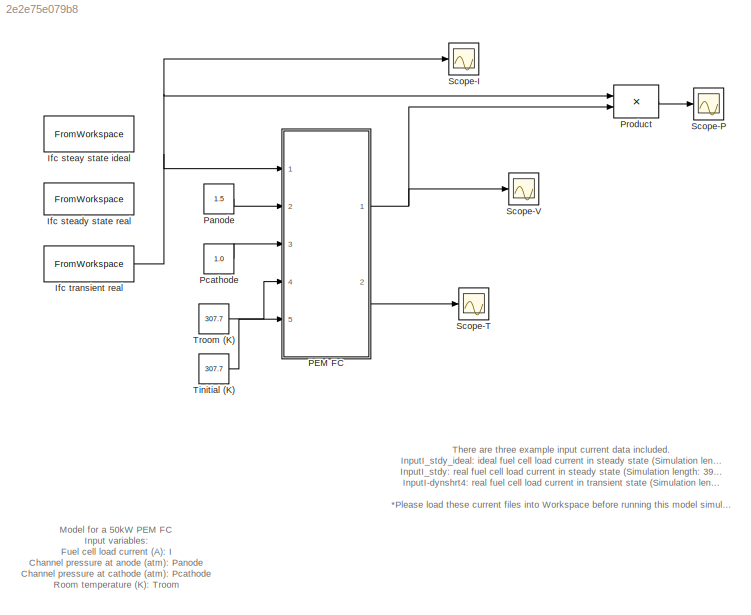
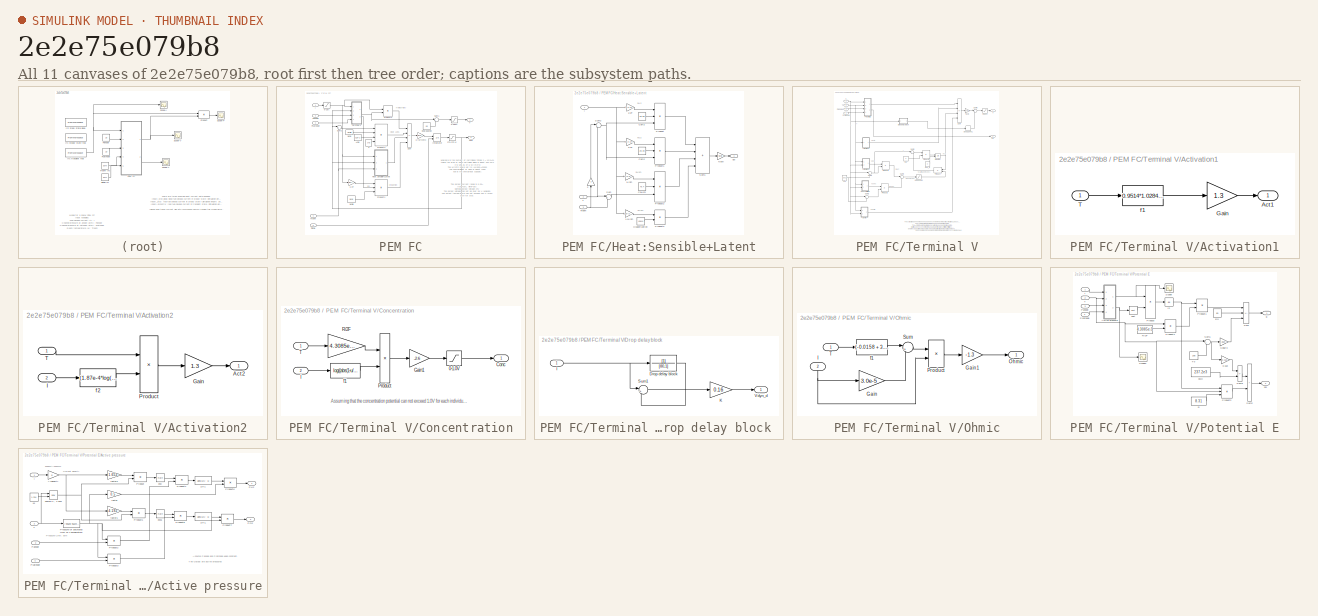
[diagram: thumbnail index - all 11 canvases of the model, root first then tree order]
MODEL slx_2e2e75e079b8
KIND model
CONFIG AbsTol = auto
CONFIG EnableMultiTasking = on
CONFIG FixedStep = 0.001
CONFIG MaxStep = auto
CONFIG MinStep = auto
CONFIG RelTol = 1e-6
CONFIG SampleTimeConstraint = Unconstrained
CONFIG SolverName = ode23tb
CONFIG StartTime = 0.0
CONFIG StopTime = 4900
BLOCK [FromWorkspace] Ifc steady state real
  VariableName = InputI_stdy
  ZeroCross = off
BLOCK [FromWorkspace] Ifc steay state ideal
  VariableName = InputI_stdy_ideal
  ZeroCross = off
BLOCK [FromWorkspace] Ifc transient real
  VariableName = InputI_dynshrt4
  ZeroCross = off
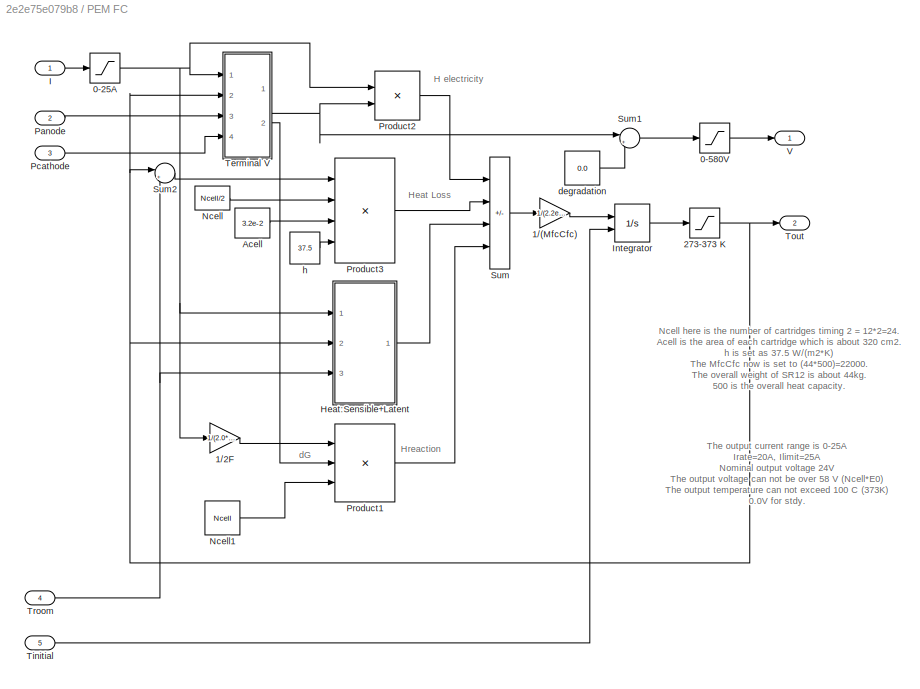
BLOCK [SubSystem] PEM FC
  Ports = [5, 2]
  RequestExecContextInheritance = off
BLOCK [Saturate] PEM FC/0-25A
  LowerLimit = 0
  UpperLimit = 25
BLOCK [Saturate] PEM FC/0-580V
  LowerLimit = 0
  UpperLimit = 1500
BLOCK [Gain] PEM FC/1//(MfcCfc)
  Gain = 1/(2.2e4)
  OutDataTypeStr = Inherit: Same as input
  ParamDataTypeStr = Inherit: Same as input
  SaturateOnIntegerOverflow = on
BLOCK [Gain] PEM FC/1//2F
  Gain = 1/(2.0*96487.0)
  OutDataTypeStr = Inherit: Same as input
  ParamDataTypeStr = Inherit: Same as input
  SaturateOnIntegerOverflow = on
BLOCK [Saturate] PEM FC/273-373 K
  LowerLimit = 273.15
  UpperLimit = 373.15
BLOCK [Constant] PEM FC/Acell
  Value = 3.2e-2
BLOCK [SubSystem] PEM FC/Heat:Sensible+Latent
  Ports = [3, 1]
  RequestExecContextInheritance = off
BLOCK [Gain] PEM FC/Heat:Sensible+Latent/1.0//(2F)
  Gain = 1.0/(2.0*96487.0)
  OutDataTypeStr = Inherit: Same as input
  ParamDataTypeStr = Inherit: Same as input
  SaturateOnIntegerOverflow = on
BLOCK [Gain] PEM FC/Heat:Sensible+Latent/1//(2F)
  Gain = 1/(2.0*96487.0)
  OutDataTypeStr = Inherit: Same as input
  ParamDataTypeStr = Inherit: Same as input
  SaturateOnIntegerOverflow = on
BLOCK [Gain] PEM FC/Heat:Sensible+Latent/1//2F
  Gain = 1/(2.0*96487.0)
  OutDataTypeStr = Inherit: Same as input
  ParamDataTypeStr = Inherit: Same as input
  SaturateOnIntegerOverflow = on
BLOCK [Gain] PEM FC/Heat:Sensible+Latent/1//4F
  Gain = 1/(4.0*96487.0)
  OutDataTypeStr = Inherit: Same as input
  ParamDataTypeStr = Inherit: Same as input
  SaturateOnIntegerOverflow = on
BLOCK [Gain] PEM FC/Heat:Sensible+Latent/2
  Gain = 2
  NameLocation = right
  OutDataTypeStr = Inherit: Same as input
  ParamDataTypeStr = Inherit: Same as input
  SaturateOnIntegerOverflow = on
BLOCK [Constant] PEM FC/Heat:Sensible+Latent/CpH2
  Value = 28.68
BLOCK [Constant] PEM FC/Heat:Sensible+Latent/CpH2O
  Value = 75.4
BLOCK [Constant] PEM FC/Heat:Sensible+Latent/CpO2
  Value = 29.39
BLOCK [Constant] PEM FC/Heat:Sensible+Latent/Hvaporization
  Value = 40644
BLOCK [Inport] PEM FC/Heat:Sensible+Latent/I
BLOCK [Gain] PEM FC/Heat:Sensible+Latent/Ncell
  Gain = Ncell
  OutDataTypeStr = Inherit: Same as input
  ParamDataTypeStr = Inherit: Same as input
  SaturateOnIntegerOverflow = on
BLOCK [Product] PEM FC/Heat:Sensible+Latent/Product
  Inputs = 3
  OutDataTypeStr = Inherit: Same as first input
  Ports = [3, 1]
  SaturateOnIntegerOverflow = on
BLOCK [Product] PEM FC/Heat:Sensible+Latent/Product1
  Inputs = 3
  OutDataTypeStr = Inherit: Same as first input
  Ports = [3, 1]
  SaturateOnIntegerOverflow = on
BLOCK [Product] PEM FC/Heat:Sensible+Latent/Product2
  Inputs = 3
  OutDataTypeStr = Inherit: Same as first input
  Ports = [3, 1]
  SaturateOnIntegerOverflow = on
BLOCK [Product] PEM FC/Heat:Sensible+Latent/Product3
  OutDataTypeStr = Inherit: Same as first input
  Ports = [2, 1]
  SaturateOnIntegerOverflow = on
BLOCK [Sum] PEM FC/Heat:Sensible+Latent/Sum
  Inputs = |+-
  Ports = [2, 1]
  SaturateOnIntegerOverflow = on
BLOCK [Sum] PEM FC/Heat:Sensible+Latent/Sum1
  IconShape = rectangular
  Inputs = ++++
  Ports = [4, 1]
  SaturateOnIntegerOverflow = on
BLOCK [Sum] PEM FC/Heat:Sensible+Latent/Sum2
  Inputs = |+-
  Ports = [2, 1]
  SaturateOnIntegerOverflow = on
BLOCK [Inport] PEM FC/Heat:Sensible+Latent/T
  Port = 2
BLOCK [Inport] PEM FC/Heat:Sensible+Latent/Troom
  Port = 3
BLOCK [Outport] PEM FC/Heat:Sensible+Latent/qsl
BLOCK [Inport] PEM FC/I
BLOCK [Integrator] PEM FC/Integrator
  InitialConditionSource = external
  Ports = [2, 1]
BLOCK [Constant] PEM FC/Ncell
  Value = Ncell/2
BLOCK [Constant] PEM FC/Ncell1
  Value = Ncell
BLOCK [Inport] PEM FC/Panode
  Port = 2
BLOCK [Inport] PEM FC/Pcathode
  Port = 3
BLOCK [Product] PEM FC/Product1
  Inputs = 3
  OutDataTypeStr = Inherit: Same as first input
  Ports = [3, 1]
  SaturateOnIntegerOverflow = on
BLOCK [Product] PEM FC/Product2
  OutDataTypeStr = Inherit: Same as first input
  Ports = [2, 1]
  SaturateOnIntegerOverflow = on
BLOCK [Product] PEM FC/Product3
  Inputs = 4
  OutDataTypeStr = Inherit: Same as first input
  Ports = [4, 1]
  SaturateOnIntegerOverflow = on
BLOCK [Sum] PEM FC/Sum
  IconShape = rectangular
  Inputs = ---+
  Ports = [4, 1]
  SaturateOnIntegerOverflow = on
BLOCK [Sum] PEM FC/Sum1
  Inputs = |+-
  Ports = [2, 1]
  SaturateOnIntegerOverflow = on
BLOCK [Sum] PEM FC/Sum2
  Inputs = |+-
  Ports = [2, 1]
  SaturateOnIntegerOverflow = on
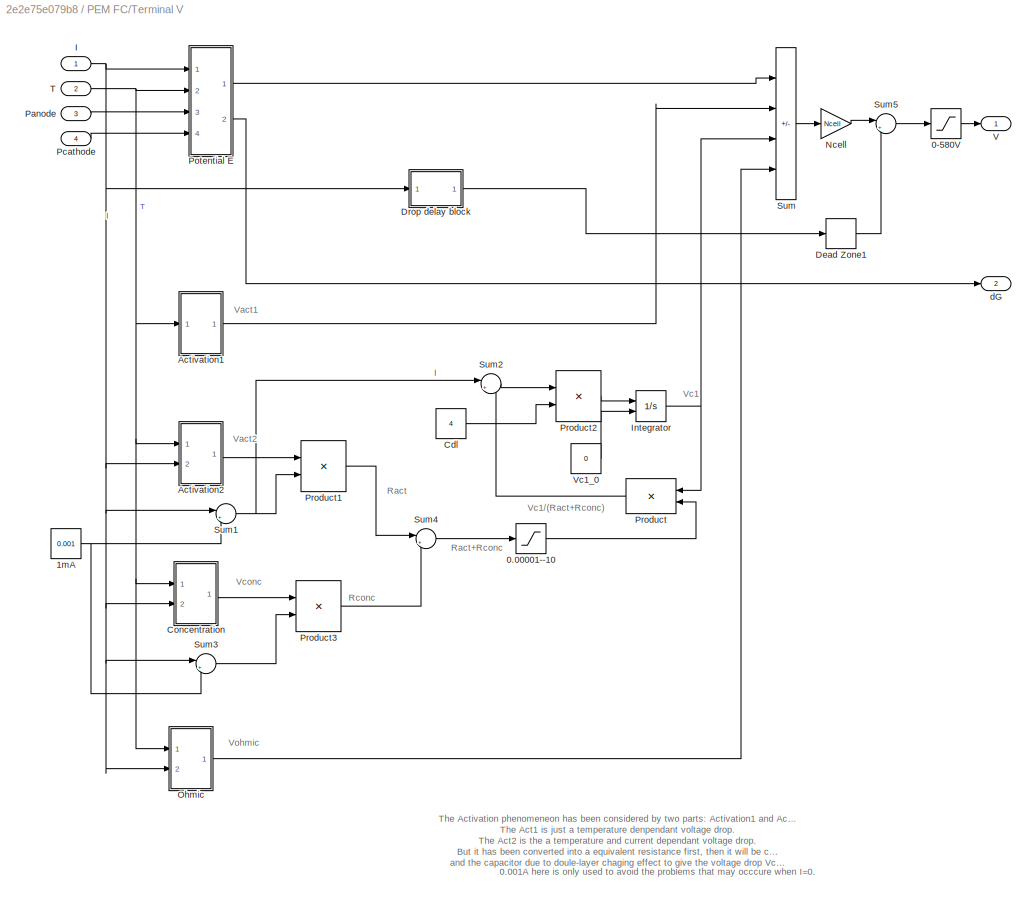
BLOCK [SubSystem] PEM FC/Terminal V
  Ports = [4, 2]
  RequestExecContextInheritance = off
BLOCK [Saturate] PEM FC/Terminal V/0-580V
  LowerLimit = 0
  UpperLimit = 1500
BLOCK [Saturate] PEM FC/Terminal V/0.00001--10
  LowerLimit = 0.00001
  UpperLimit = 10
BLOCK [Constant] PEM FC/Terminal V/1mA
  Value = 0.001
BLOCK [SubSystem] PEM FC/Terminal V/Activation1
  Ports = [1, 1]
  RequestExecContextInheritance = off
BLOCK [Outport] PEM FC/Terminal V/Activation1/Act1
BLOCK [Gain] PEM FC/Terminal V/Activation1/Gain
  Gain = 1.3
  OutDataTypeStr = Inherit: Same as input
  ParamDataTypeStr = Inherit: Same as input
  SaturateOnIntegerOverflow = on
BLOCK [Inport] PEM FC/Terminal V/Activation1/T
BLOCK [Fcn] PEM FC/Terminal V/Activation1/f1
  Expr = 0.9514*1.0284 - 2.2e-3*u
BLOCK [SubSystem] PEM FC/Terminal V/Activation2
  Ports = [2, 1]
  RequestExecContextInheritance = off
BLOCK [Outport] PEM FC/Terminal V/Activation2/Act2
BLOCK [Gain] PEM FC/Terminal V/Activation2/Gain
  Gain = 1.3
  OutDataTypeStr = Inherit: Same as input
  ParamDataTypeStr = Inherit: Same as input
  SaturateOnIntegerOverflow = on
BLOCK [Inport] PEM FC/Terminal V/Activation2/I
  Port = 2
BLOCK [Product] PEM FC/Terminal V/Activation2/Product
  OutDataTypeStr = Inherit: Same as first input
  Ports = [2, 1]
  SaturateOnIntegerOverflow = on
BLOCK [Inport] PEM FC/Terminal V/Activation2/T
  NameLocation = top
BLOCK [Fcn] PEM FC/Terminal V/Activation2/f2
  Expr = (1.87e-4*log(u+1))*0.40
BLOCK [Constant] PEM FC/Terminal V/Cdl
  Value = 4
BLOCK [SubSystem] PEM FC/Terminal V/Concentration
  Ports = [2, 1]
  RequestExecContextInheritance = off
BLOCK [Saturate] PEM FC/Terminal V/Concentration/0-1.0V
  LowerLimit = 0
  UpperLimit = 1.0
BLOCK [Outport] PEM FC/Terminal V/Concentration/Conc
BLOCK [Gain] PEM FC/Terminal V/Concentration/Gain1
  Gain = -2.6
  OutDataTypeStr = Inherit: Same as input
  ParamDataTypeStr = Inherit: Same as input
  SaturateOnIntegerOverflow = on
BLOCK [Inport] PEM FC/Terminal V/Concentration/I
  Port = 2
BLOCK [Product] PEM FC/Terminal V/Concentration/Product
  OutDataTypeStr = Inherit: Same as first input
  Ports = [2, 1]
  SaturateOnIntegerOverflow = on
BLOCK [Gain] PEM FC/Terminal V/Concentration/R//2F
  Gain = 4.3085e-5
  NameLocation = top
  OutDataTypeStr = Inherit: Same as input
  ParamDataTypeStr = Inherit: Same as input
  SaturateOnIntegerOverflow = on
BLOCK [Inport] PEM FC/Terminal V/Concentration/T
BLOCK [Fcn] PEM FC/Terminal V/Concentration/f1
  Expr = log((abs(1-u/25))+1.0e-100)
BLOCK [DeadZone] PEM FC/Terminal V/Dead Zone1
  LowerValue = -0.05
  UpperValue = 0.05
BLOCK [SubSystem] PEM FC/Terminal V/Drop delay block 
  Ports = [1, 1]
  RequestExecContextInheritance = off
BLOCK [TransferFcn] PEM FC/Terminal V/Drop delay block /Drop delay block
  Denominator = [80,1]
BLOCK [Inport] PEM FC/Terminal V/Drop delay block /I
BLOCK [Gain] PEM FC/Terminal V/Drop delay block /K
  Gain = 0.16
  OutDataTypeStr = Inherit: Same as input
  ParamDataTypeStr = Inherit: Same as input
  SaturateOnIntegerOverflow = on
BLOCK [Sum] PEM FC/Terminal V/Drop delay block /Sum1
  Inputs = |+-
  Ports = [2, 1]
  SaturateOnIntegerOverflow = on
BLOCK [Outport] PEM FC/Terminal V/Drop delay block /Vdyn_d
BLOCK [Inport] PEM FC/Terminal V/I
BLOCK [Integrator] PEM FC/Terminal V/Integrator
  InitialConditionSource = external
  Ports = [2, 1]
BLOCK [Gain] PEM FC/Terminal V/Ncell
  Gain = Ncell
  OutDataTypeStr = Inherit: Same as input
  ParamDataTypeStr = Inherit: Same as input
  SaturateOnIntegerOverflow = on
BLOCK [SubSystem] PEM FC/Terminal V/Ohmic
  Ports = [2, 1]
  RequestExecContextInheritance = off
BLOCK [Gain] PEM FC/Terminal V/Ohmic/Gain
  Gain = 3.0e-5
  OutDataTypeStr = Inherit: Same as input
  ParamDataTypeStr = Inherit: Same as input
  SaturateOnIntegerOverflow = on
BLOCK [Gain] PEM FC/Terminal V/Ohmic/Gain1
  Gain = -1.3
  OutDataTypeStr = Inherit: Same as input
  ParamDataTypeStr = Inherit: Same as input
  SaturateOnIntegerOverflow = on
BLOCK [Inport] PEM FC/Terminal V/Ohmic/I
  NameLocation = right
  Port = 2
BLOCK [Outport] PEM FC/Terminal V/Ohmic/Ohmic
BLOCK [Product] PEM FC/Terminal V/Ohmic/Product
  OutDataTypeStr = Inherit: Same as first input
  Ports = [2, 1]
  SaturateOnIntegerOverflow = on
BLOCK [Sum] PEM FC/Terminal V/Ohmic/Sum
  Inputs = |+-
  Ports = [2, 1]
  SaturateOnIntegerOverflow = on
BLOCK [Inport] PEM FC/Terminal V/Ohmic/T
BLOCK [Fcn] PEM FC/Terminal V/Ohmic/f1
  Expr = (-0.0158 + 3.8e-5*u)
BLOCK [Inport] PEM FC/Terminal V/Panode
  Port = 3
BLOCK [Inport] PEM FC/Terminal V/Pcathode
  Port = 4
BLOCK [SubSystem] PEM FC/Terminal V/Potential E
  Ports = [4, 2]
  RequestExecContextInheritance = off
BLOCK [Gain] PEM FC/Terminal V/Potential E/0.163
  Gain = 0.163
  OutDataTypeStr = Inherit: Same as input
  ParamDataTypeStr = Inherit: Same as input
  SaturateOnIntegerOverflow = on
BLOCK [Gain] PEM FC/Terminal V/Potential E/0.85e-3
  Gain = 0.85e-3
  OutDataTypeStr = Inherit: Same as input
  ParamDataTypeStr = Inherit: Same as input
  SaturateOnIntegerOverflow = on
BLOCK [SubSystem] PEM FC/Terminal V/Potential E/Active pressure
  Ports = [4, 2]
  RequestExecContextInheritance = off
BLOCK [Fcn] PEM FC/Terminal V/Potential E/Active pressure/1//x-1
  Expr = abs(1/u - 1)
BLOCK [Fcn] PEM FC/Terminal V/Potential E/Active pressure/1//x-1.
  Expr = abs(1/u - 1)
BLOCK [Inport] PEM FC/Terminal V/Potential E/Active pressure/I
BLOCK [Gain] PEM FC/Terminal V/Potential E/Active pressure/I-Idensity
  Gain = 5
  OutDataTypeStr = Inherit: Same as input
  ParamDataTypeStr = Inherit: Same as input
  SaturateOnIntegerOverflow = on
BLOCK [Outport] PEM FC/Terminal V/Potential E/Active pressure/PH2
BLOCK [Outport] PEM FC/Terminal V/Potential E/Active pressure/PO2
  Port = 2
BLOCK [Inport] PEM FC/Terminal V/Potential E/Active pressure/Panode
  Port = 3
BLOCK [Inport] PEM FC/Terminal V/Potential E/Active pressure/Pcathode
  Port = 4
BLOCK [Fcn] PEM FC/Terminal V/Potential E/Active pressure/Pressure of saturated H2O vs Temperature
  Expr = (-40529.4522405347 + 401.94033912153*u-1.33430273535993*(u^2) + 0.00148378443819808*(u^3))/760
BLOCK [Product] PEM FC/Terminal V/Potential E/Active pressure/Product
  Inputs = */
  OutDataTypeStr = Inherit: Same as first input
  Ports = [2, 1]
  SaturateOnIntegerOverflow = on
BLOCK [Product] PEM FC/Terminal V/Potential E/Active pressure/Product1
  Inputs = */
  OutDataTypeStr = Inherit: Same as first input
  Ports = [2, 1]
  SaturateOnIntegerOverflow = on
BLOCK [Product] PEM FC/Terminal V/Potential E/Active pressure/Product2
  Inputs = */
  OutDataTypeStr = Inherit: Same as first input
  Ports = [2, 1]
  SaturateOnIntegerOverflow = on
BLOCK [Product] PEM FC/Terminal V/Potential E/Active pressure/Product3
  Inputs = */
  OutDataTypeStr = Inherit: Same as first input
  Ports = [2, 1]
  SaturateOnIntegerOverflow = on
BLOCK [Product] PEM FC/Terminal V/Potential E/Active pressure/Product4
  OutDataTypeStr = Inherit: Same as first input
  Ports = [2, 1]
  SaturateOnIntegerOverflow = on
BLOCK [Product] PEM FC/Terminal V/Potential E/Active pressure/Product5
  OutDataTypeStr = Inherit: Same as first input
  Ports = [2, 1]
  SaturateOnIntegerOverflow = on
BLOCK [Product] PEM FC/Terminal V/Potential E/Active pressure/Product6
  OutDataTypeStr = Inherit: Same as first input
  Ports = [2, 1]
  SaturateOnIntegerOverflow = on
BLOCK [Product] PEM FC/Terminal V/Potential E/Active pressure/Product7
  OutDataTypeStr = Inherit: Same as first input
  Ports = [2, 1]
  SaturateOnIntegerOverflow = on
BLOCK [Inport] PEM FC/Terminal V/Potential E/Active pressure/T
  Port = 2
BLOCK [Math] PEM FC/Terminal V/Potential E/Active pressure/exp
  Ports = [1, 1]
  SignedPower = on
BLOCK [Math] PEM FC/Terminal V/Potential E/Active pressure/exp1
  Ports = [1, 1]
  SignedPower = on
BLOCK [Gain] PEM FC/Terminal V/Potential E/Active pressure/factor
  Gain = 0.5
  OutDataTypeStr = Inherit: Same as input
  ParamDataTypeStr = Inherit: Same as input
  SaturateOnIntegerOverflow = on
BLOCK [Gain] PEM FC/Terminal V/Potential E/Active pressure/factor1
  Gain = 4.192
  OutDataTypeStr = Inherit: Same as input
  ParamDataTypeStr = Inherit: Same as input
  SaturateOnIntegerOverflow = on
BLOCK [Gain] PEM FC/Terminal V/Potential E/Active pressure/factor2
  Gain = 1.653
  OutDataTypeStr = Inherit: Same as input
  ParamDataTypeStr = Inherit: Same as input
  SaturateOnIntegerOverflow = on
BLOCK [Constant] PEM FC/Terminal V/Potential E/Active pressure/k1
  Value = 1.334
BLOCK [Math] PEM FC/Terminal V/Potential E/Active pressure/power(T, 1.334)
  Operator = pow
  Ports = [2, 1]
  SignedPower = on
BLOCK [Outport] PEM FC/Terminal V/Potential E/E
BLOCK [Constant] PEM FC/Terminal V/Potential E/E0
  Value = E0
BLOCK [Inport] PEM FC/Terminal V/Potential E/I
BLOCK [Inport] PEM FC/Terminal V/Potential E/Panode
  Port = 3
BLOCK [Inport] PEM FC/Terminal V/Potential E/Pcathode
  Port = 4
BLOCK [Product] PEM FC/Terminal V/Potential E/Product
  OutDataTypeStr = Inherit: Same as first input
  Ports = [2, 1]
  SaturateOnIntegerOverflow = on
BLOCK [Product] PEM FC/Terminal V/Potential E/Product1
  OutDataTypeStr = Inherit: Same as first input
  Ports = [2, 1]
  SaturateOnIntegerOverflow = on
BLOCK [Product] PEM FC/Terminal V/Potential E/Product2
  Inputs = 3
  OutDataTypeStr = Inherit: Same as first input
  Ports = [3, 1]
  SaturateOnIntegerOverflow = on
BLOCK [Product] PEM FC/Terminal V/Potential E/Product4
  OutDataTypeStr = Inherit: Same as first input
  Ports = [2, 1]
  SaturateOnIntegerOverflow = on
BLOCK [Constant] PEM FC/Terminal V/Potential E/R
  Value = 8.31
BLOCK [Constant] PEM FC/Terminal V/Potential E/R//2F
  Value = 4.3085e-5
BLOCK [Scope] PEM FC/Terminal V/Potential E/Scope
  Floating = off
  NumInputPorts = 1
  Ports = [1]
  ScopeSpecificationString = C++SS(StrPVP('Location','[1, 49, 1025, 739]'),StrPVP('Open','off'),MxPVP('AxesTitles',54,'struct(''axes1'',''%<SignalLabel>'')'),StrPVP('SaveToWorkspace','on'),StrPVP('SaveName','Ph2'),StrPVP('DataFormat','Array'),StrPVP('MaxDataPoints','500000'),StrPVP('LimitDataPoints','on'),StrPVP('Decimation','1'),StrPVP('BlockParamSampleInput','off'))
BLOCK [Scope] PEM FC/Terminal V/Potential E/Scope1
  Floating = off
  NumInputPorts = 1
  Ports = [1]
  ScopeSpecificationString = C++SS(StrPVP('Location','[1, 49, 1025, 739]'),StrPVP('Open','off'),MxPVP('AxesTitles',54,'struct(''axes1'',''%<SignalLabel>'')'),StrPVP('SaveToWorkspace','on'),StrPVP('SaveName','Po2'),StrPVP('DataFormat','Array'),StrPVP('MaxDataPoints','500000'),StrPVP('LimitDataPoints','on'),StrPVP('Decimation','1'),StrPVP('BlockParamSampleInput','off'))
BLOCK [Sum] PEM FC/Terminal V/Potential E/Sum
  IconShape = rectangular
  Inputs = ++-
  Ports = [3, 1]
  SaturateOnIntegerOverflow = on
BLOCK [Sum] PEM FC/Terminal V/Potential E/Sum1
  Inputs = |+-
  Ports = [2, 1]
  SaturateOnIntegerOverflow = on
BLOCK [Sum] PEM FC/Terminal V/Potential E/Sum2
  IconShape = rectangular
  Ports = [2, 1]
  SaturateOnIntegerOverflow = on
BLOCK [Sum] PEM FC/Terminal V/Potential E/Sum3
  IconShape = rectangular
  Inputs = -+
  Ports = [2, 1]
  SaturateOnIntegerOverflow = on
BLOCK [Inport] PEM FC/Terminal V/Potential E/T
  Port = 2
BLOCK [Constant] PEM FC/Terminal V/Potential E/T0
  Value = 298
BLOCK [Outport] PEM FC/Terminal V/Potential E/dG
  Port = 2
BLOCK [Constant] PEM FC/Terminal V/Potential E/dG0
  Value = 237.2e3
BLOCK [Math] PEM FC/Terminal V/Potential E/ln
  Operator = log
  Ports = [1, 1]
  SignedPower = on
BLOCK [Math] PEM FC/Terminal V/Potential E/sqrt
  Operator = sqrt
  Ports = [1, 1]
  SignedPower = on
BLOCK [Product] PEM FC/Terminal V/Product
  Inputs = */
  NameLocation = top
  OutDataTypeStr = Inherit: Same as first input
  Ports = [2, 1]
  SaturateOnIntegerOverflow = on
BLOCK [Product] PEM FC/Terminal V/Product1
  Inputs = */
  OutDataTypeStr = Inherit: Same as first input
  Ports = [2, 1]
  SaturateOnIntegerOverflow = on
BLOCK [Product] PEM FC/Terminal V/Product2
  Inputs = */
  OutDataTypeStr = Inherit: Same as first input
  Ports = [2, 1]
  SaturateOnIntegerOverflow = on
BLOCK [Product] PEM FC/Terminal V/Product3
  Inputs = */
  OutDataTypeStr = Inherit: Same as first input
  Ports = [2, 1]
  SaturateOnIntegerOverflow = on
BLOCK [Sum] PEM FC/Terminal V/Sum
  IconShape = rectangular
  Inputs = +---
  Ports = [4, 1]
  SaturateOnIntegerOverflow = on
BLOCK [Sum] PEM FC/Terminal V/Sum1
  Inputs = |++
  Ports = [2, 1]
  SaturateOnIntegerOverflow = on
BLOCK [Sum] PEM FC/Terminal V/Sum2
  Inputs = |+-
  Ports = [2, 1]
  SaturateOnIntegerOverflow = on
BLOCK [Sum] PEM FC/Terminal V/Sum3
  Inputs = |++
  Ports = [2, 1]
  SaturateOnIntegerOverflow = on
BLOCK [Sum] PEM FC/Terminal V/Sum4
  Inputs = |++
  Ports = [2, 1]
  SaturateOnIntegerOverflow = on
BLOCK [Sum] PEM FC/Terminal V/Sum5
  Inputs = |+-
  Ports = [2, 1]
  SaturateOnIntegerOverflow = on
BLOCK [Inport] PEM FC/Terminal V/T
  Port = 2
BLOCK [Outport] PEM FC/Terminal V/V
BLOCK [Constant] PEM FC/Terminal V/Vc1_0
  Value = 0
BLOCK [Outport] PEM FC/Terminal V/dG
  Port = 2
BLOCK [Inport] PEM FC/Tinitial
  Port = 5
BLOCK [Outport] PEM FC/Tout
  Port = 2
BLOCK [Inport] PEM FC/Troom
  Port = 4
BLOCK [Outport] PEM FC/V
BLOCK [Constant] PEM FC/degradation
  Value = 0.0
BLOCK [Constant] PEM FC/h
  Value = 37.5
BLOCK [Constant] Panode
  Value = 1.5
BLOCK [Constant] Pcathode
  Value = 1.0
BLOCK [Product] Product
  OutDataTypeStr = double
  Ports = [2, 1]
  SaturateOnIntegerOverflow = on
BLOCK [Scope] Scope-I
  Floating = off
  NumInputPorts = 1
  Ports = [1]
  ScopeSpecificationString = C++SS(StrPVP('Location','[5, 60, 1019, 712]'),StrPVP('Open','off'),MxPVP('AxesTitles',54,'struct(''axes1'',''%<SignalLabel>'')'),StrPVP('YMin','4'),StrPVP('YMax','18'),StrPVP('SaveToWorkspace','on'),StrPVP('SaveName','Ist'),StrPVP('DataFormat','Array'),StrPVP('MaxDataPoints','5000000'),StrPVP('LimitDataPoints','on'),StrPVP('Decimation','1'),StrPVP('BlockParamSampleInput','off'))
BLOCK [Scope] Scope-P
  Floating = off
  NumInputPorts = 1
  Ports = [1]
  ScopeSpecificationString = C++SS(StrPVP('Location','[6, 60, 1020, 714]'),StrPVP('Open','off'),MxPVP('AxesTitles',54,'struct(''axes1'',''%<SignalLabel>'')'),StrPVP('SaveToWorkspace','on'),StrPVP('SaveName','P'),StrPVP('DataFormat','Array'),StrPVP('MaxDataPoints','500000'),StrPVP('LimitDataPoints','on'),StrPVP('Decimation','1'),StrPVP('BlockParamSampleInput','off'))
BLOCK [Scope] Scope-T
  Floating = off
  NumInputPorts = 1
  Ports = [1]
  ScopeSpecificationString = C++SS(StrPVP('Location','[6, 60, 1020, 712]'),StrPVP('Open','off'),MxPVP('AxesTitles',54,'struct(''axes1'',''%<SignalLabel>'')'),StrPVP('SaveToWorkspace','on'),StrPVP('SaveName','Tst'),StrPVP('DataFormat','Array'),StrPVP('MaxDataPoints','500000'),StrPVP('LimitDataPoints','on'),StrPVP('Decimation','1'),StrPVP('BlockParamSampleInput','off'))
BLOCK [Scope] Scope-V
  Floating = off
  NumInputPorts = 1
  Ports = [1]
  ScopeSpecificationString = Simulink.scopes.TimeScopeBlockCfg('CurrentConfiguration', extmgr.ConfigurationSet(extmgr.Configuration('Core','General UI',true),extmgr.Configuration('Core','Source UI',true),extmgr.Configuration('Sources','WiredSimulink',true,'DataLogging',true,'DataLoggingVariableName','Vst','DataLoggingSaveFormat','Array','DataLoggingMaxPoints','5000000','DataLoggingLimitDataPoints',true,'DataLoggingDecimation'...<+1765ch>
BLOCK [Constant] Tinitial (K)
  Value = 307.7
BLOCK [Constant] Troom (K)
  Value = 307.7
ANNOTATION (root): Model for a 50kW PEM FC Input variables: Fuel cell load current (A): I Channel pressure at anode (atm): Panode Channel pressure at cathode (atm): Pcathode Room temperature (K): Troom Initial temperature of FC (K): Tinitial (Pandoe and Pcathode are assumed constant in the model.) ============================== Output variables: Output terminal voltage (V): V FC temperature (K): Tout
ANNOTATION (root): There are three example input current data included. InputI_stdy_ideal: ideal fuel cell load current in steady state (Simulation length: 4900s) InputI_stdy: real fuel cell load current in steady state (Simulation length: 3900s) InputI-dynshrt4: real fuel cell load current in transient state (Simulation length: 2040s) *Please load these current files into Workspace before running this model simulat...<+4ch>
ANNOTATION PEM FC: H electricity
ANNOTATION PEM FC: Heat Loss
ANNOTATION PEM FC: Hreaction
ANNOTATION PEM FC: Ncell here is the number of cartridges timing 2 = 12*2=24. Acell is the area of each cartridge which is about 320 cm2. h is set as 37.5 W/(m2*K) The MfcCfc now is set to (44*500)=22000. The overall weight of SR12 is about 44kg. 500 is the overall heat capacity. (The original McCfc is 3.5e4. and the original h=50.)
ANNOTATION PEM FC: The output current range is 0-25A Irate=20A, Ilimit=25A Nominal output voltage 24V The output voltage can not be over 58 V (Ncell*E0) The output temperature can not exceed 100 C (373K) 0.0V for stdy. 0.35V for cell degradation
ANNOTATION PEM FC: dG
ANNOTATION PEM FC/Heat:Sensible+Latent: nH2
ANNOTATION PEM FC/Heat:Sensible+Latent: nH2O
ANNOTATION PEM FC/Heat:Sensible+Latent: nO2
ANNOTATION PEM FC/Terminal V: 0.001A here is only used to avoid the problems that may occcure when I=0.
ANNOTATION PEM FC/Terminal V: I
ANNOTATION PEM FC/Terminal V: Ract
ANNOTATION PEM FC/Terminal V: Ract+Rconc
ANNOTATION PEM FC/Terminal V: Rconc
ANNOTATION PEM FC/Terminal V: The Activation phenomeneon has been considered by two parts: Activation1 and Activation2. The Act1 is just a temperature denpendant voltage drop. The Act2 is the a temperature and current dependant voltage drop. But it has been converted into a equivalent resistance first, then it will be combined together with Rconc and the capacitor due to doule-layer chaging effect to give the voltage drop Vc1.
ANNOTATION PEM FC/Terminal V: Vact1
ANNOTATION PEM FC/Terminal V: Vact2
ANNOTATION PEM FC/Terminal V: Vc1
ANNOTATION PEM FC/Terminal V: Vc1/(Ract+Rconc)
ANNOTATION PEM FC/Terminal V: Vconc
ANNOTATION PEM FC/Terminal V: Vohmic
ANNOTATION PEM FC/Terminal V/Concentration: Assuming that the concentration potential can not exceed 1.0V for each individual cell
ANNOTATION PEM FC/Terminal V/Potential E/Active pressure: 1000mA/200cm2
ANNOTATION PEM FC/Terminal V/Potential E/Active pressure: Assume Panode and Pcathode keep constant.
ANNOTATION PEM FC/Terminal V/Potential E/Active pressure: Current density
ANNOTATION PEM FC/Terminal V/Potential E/Active pressure: Pressure Unit: atm
ANNOTATION PEM FC/Terminal V/Potential E/Active pressure: The Output are active pressures
NET Ifc transient real:1 -> PEM FC:1, Product:1, Scope-I:1
NET PEM FC/0-25A:1 -> PEM FC/1//2F:1, PEM FC/Heat:Sensible+Latent:1, PEM FC/Product2:1, PEM FC/Terminal V:1
LINE PEM FC/0-580V:1 -> PEM FC/V:1
LINE PEM FC/1//(MfcCfc):1 -> PEM FC/Integrator:1
LINE PEM FC/1//2F:1 -> PEM FC/Product1:1
NET PEM FC/273-373 K:1 -> PEM FC/Heat:Sensible+Latent:2, PEM FC/Sum2:1, PEM FC/Terminal V:2, PEM FC/Tout:1
LINE PEM FC/Acell:1 -> PEM FC/Product3:3
LINE PEM FC/Heat:Sensible+Latent/1.0//(2F):1 -> PEM FC/Heat:Sensible+Latent/Product3:1
LINE PEM FC/Heat:Sensible+Latent/1//(2F):1 -> PEM FC/Heat:Sensible+Latent/Product2:1
LINE PEM FC/Heat:Sensible+Latent/1//2F:1 -> PEM FC/Heat:Sensible+Latent/Product:1
LINE PEM FC/Heat:Sensible+Latent/1//4F:1 -> PEM FC/Heat:Sensible+Latent/Product1:1
LINE PEM FC/Heat:Sensible+Latent/2:1 -> PEM FC/Heat:Sensible+Latent/Sum2:1
LINE PEM FC/Heat:Sensible+Latent/CpH2:1 -> PEM FC/Heat:Sensible+Latent/Product:2
LINE PEM FC/Heat:Sensible+Latent/CpH2O:1 -> PEM FC/Heat:Sensible+Latent/Product2:2
LINE PEM FC/Heat:Sensible+Latent/CpO2:1 -> PEM FC/Heat:Sensible+Latent/Product1:2
LINE PEM FC/Heat:Sensible+Latent/Hvaporization:1 -> PEM FC/Heat:Sensible+Latent/Product3:2
NET PEM FC/Heat:Sensible+Latent/I:1 -> PEM FC/Heat:Sensible+Latent/1.0//(2F):1, PEM FC/Heat:Sensible+Latent/1//(2F):1, PEM FC/Heat:Sensible+Latent/1//2F:1, PEM FC/Heat:Sensible+Latent/1//4F:1
LINE PEM FC/Heat:Sensible+Latent/Ncell:1 -> PEM FC/Heat:Sensible+Latent/qsl:1
LINE PEM FC/Heat:Sensible+Latent/Product1:1 -> PEM FC/Heat:Sensible+Latent/Sum1:2
LINE PEM FC/Heat:Sensible+Latent/Product2:1 -> PEM FC/Heat:Sensible+Latent/Sum1:3
LINE PEM FC/Heat:Sensible+Latent/Product3:1 -> PEM FC/Heat:Sensible+Latent/Sum1:4
LINE PEM FC/Heat:Sensible+Latent/Product:1 -> PEM FC/Heat:Sensible+Latent/Sum1:1
LINE PEM FC/Heat:Sensible+Latent/Sum1:1 -> PEM FC/Heat:Sensible+Latent/Ncell:1
NET PEM FC/Heat:Sensible+Latent/Sum2:1 -> PEM FC/Heat:Sensible+Latent/Product1:3, PEM FC/Heat:Sensible+Latent/Product:3
LINE PEM FC/Heat:Sensible+Latent/Sum:1 -> PEM FC/Heat:Sensible+Latent/Product2:3
NET PEM FC/Heat:Sensible+Latent/T:1 -> PEM FC/Heat:Sensible+Latent/Sum2:2, PEM FC/Heat:Sensible+Latent/Sum:1
NET PEM FC/Heat:Sensible+Latent/Troom:1 -> PEM FC/Heat:Sensible+Latent/2:1, PEM FC/Heat:Sensible+Latent/Sum:2
LINE PEM FC/Heat:Sensible+Latent:1 -> PEM FC/Sum:3
LINE PEM FC/I:1 -> PEM FC/0-25A:1
LINE PEM FC/Integrator:1 -> PEM FC/273-373 K:1
LINE PEM FC/Ncell1:1 -> PEM FC/Product1:3
LINE PEM FC/Ncell:1 -> PEM FC/Product3:2
LINE PEM FC/Panode:1 -> PEM FC/Terminal V:3
LINE PEM FC/Pcathode:1 -> PEM FC/Terminal V:4
LINE PEM FC/Product1:1 -> PEM FC/Sum:4
LINE PEM FC/Product2:1 -> PEM FC/Sum:1
LINE PEM FC/Product3:1 -> PEM FC/Sum:2
LINE PEM FC/Sum1:1 -> PEM FC/0-580V:1
LINE PEM FC/Sum2:1 -> PEM FC/Product3:1
LINE PEM FC/Sum:1 -> PEM FC/1//(MfcCfc):1
LINE PEM FC/Terminal V/0-580V:1 -> PEM FC/Terminal V/V:1
LINE PEM FC/Terminal V/0.00001--10:1 -> PEM FC/Terminal V/Product:2
NET PEM FC/Terminal V/1mA:1 -> PEM FC/Terminal V/Sum1:2, PEM FC/Terminal V/Sum3:2
LINE PEM FC/Terminal V/Activation1/Gain:1 -> PEM FC/Terminal V/Activation1/Act1:1
LINE PEM FC/Terminal V/Activation1/T:1 -> PEM FC/Terminal V/Activation1/f1:1
LINE PEM FC/Terminal V/Activation1/f1:1 -> PEM FC/Terminal V/Activation1/Gain:1
LINE PEM FC/Terminal V/Activation1:1 -> PEM FC/Terminal V/Sum:2
LINE PEM FC/Terminal V/Activation2/Gain:1 -> PEM FC/Terminal V/Activation2/Act2:1
LINE PEM FC/Terminal V/Activation2/I:1 -> PEM FC/Terminal V/Activation2/f2:1
LINE PEM FC/Terminal V/Activation2/Product:1 -> PEM FC/Terminal V/Activation2/Gain:1
LINE PEM FC/Terminal V/Activation2/T:1 -> PEM FC/Terminal V/Activation2/Product:1
LINE PEM FC/Terminal V/Activation2/f2:1 -> PEM FC/Terminal V/Activation2/Product:2
LINE PEM FC/Terminal V/Activation2:1 -> PEM FC/Terminal V/Product1:1
LINE PEM FC/Terminal V/Cdl:1 -> PEM FC/Terminal V/Product2:2
LINE PEM FC/Terminal V/Concentration/0-1.0V:1 -> PEM FC/Terminal V/Concentration/Conc:1
LINE PEM FC/Terminal V/Concentration/Gain1:1 -> PEM FC/Terminal V/Concentration/0-1.0V:1
LINE PEM FC/Terminal V/Concentration/I:1 -> PEM FC/Terminal V/Concentration/f1:1
LINE PEM FC/Terminal V/Concentration/Product:1 -> PEM FC/Terminal V/Concentration/Gain1:1
LINE PEM FC/Terminal V/Concentration/R//2F:1 -> PEM FC/Terminal V/Concentration/Product:1
LINE PEM FC/Terminal V/Concentration/T:1 -> PEM FC/Terminal V/Concentration/R//2F:1
LINE PEM FC/Terminal V/Concentration/f1:1 -> PEM FC/Terminal V/Concentration/Product:2
LINE PEM FC/Terminal V/Concentration:1 -> PEM FC/Terminal V/Product3:1
LINE PEM FC/Terminal V/Dead Zone1:1 -> PEM FC/Terminal V/Sum5:2
LINE PEM FC/Terminal V/Drop delay block /Drop delay block:1 -> PEM FC/Terminal V/Drop delay block /Sum1:2
NET PEM FC/Terminal V/Drop delay block /I:1 -> PEM FC/Terminal V/Drop delay block /Drop delay block:1, PEM FC/Terminal V/Drop delay block /Sum1:1
LINE PEM FC/Terminal V/Drop delay block /K:1 -> PEM FC/Terminal V/Drop delay block /Vdyn_d:1
LINE PEM FC/Terminal V/Drop delay block /Sum1:1 -> PEM FC/Terminal V/Drop delay block /K:1
LINE PEM FC/Terminal V/Drop delay block :1 -> PEM FC/Terminal V/Dead Zone1:1
NET PEM FC/Terminal V/I:1 -> PEM FC/Terminal V/Activation2:2, PEM FC/Terminal V/Concentration:2, PEM FC/Terminal V/Drop delay block :1, PEM FC/Terminal V/Ohmic:2, PEM FC/Terminal V/Potential E:1, PEM FC/Terminal V/Sum1:1, PEM FC/Terminal V/Sum3:1
NET PEM FC/Terminal V/Integrator:1 -> PEM FC/Terminal V/Product:1, PEM FC/Terminal V/Sum:3
LINE PEM FC/Terminal V/Ncell:1 -> PEM FC/Terminal V/Sum5:1
LINE PEM FC/Terminal V/Ohmic/Gain1:1 -> PEM FC/Terminal V/Ohmic/Ohmic:1
LINE PEM FC/Terminal V/Ohmic/Gain:1 -> PEM FC/Terminal V/Ohmic/Sum:2
NET PEM FC/Terminal V/Ohmic/I:1 -> PEM FC/Terminal V/Ohmic/Gain:1, PEM FC/Terminal V/Ohmic/Product:2
LINE PEM FC/Terminal V/Ohmic/Product:1 -> PEM FC/Terminal V/Ohmic/Gain1:1
LINE PEM FC/Terminal V/Ohmic/Sum:1 -> PEM FC/Terminal V/Ohmic/Product:1
LINE PEM FC/Terminal V/Ohmic/T:1 -> PEM FC/Terminal V/Ohmic/f1:1
LINE PEM FC/Terminal V/Ohmic/f1:1 -> PEM FC/Terminal V/Ohmic/Sum:1
LINE PEM FC/Terminal V/Ohmic:1 -> PEM FC/Terminal V/Sum:4
LINE PEM FC/Terminal V/Panode:1 -> PEM FC/Terminal V/Potential E:3
LINE PEM FC/Terminal V/Pcathode:1 -> PEM FC/Terminal V/Potential E:4
LINE PEM FC/Terminal V/Potential E/0.163:1 -> PEM FC/Terminal V/Potential E/Sum3:1
LINE PEM FC/Terminal V/Potential E/0.85e-3:1 -> PEM FC/Terminal V/Potential E/Sum:3
LINE PEM FC/Terminal V/Potential E/Active pressure/1//x-1.:1 -> PEM FC/Terminal V/Potential E/Active pressure/Product7:1
LINE PEM FC/Terminal V/Potential E/Active pressure/1//x-1:1 -> PEM FC/Terminal V/Potential E/Active pressure/Product6:1
NET PEM FC/Terminal V/Potential E/Active pressure/I-Idensity:1 -> PEM FC/Terminal V/Potential E/Active pressure/factor1:1, PEM FC/Terminal V/Potential E/Active pressure/factor2:1
LINE PEM FC/Terminal V/Potential E/Active pressure/I:1 -> PEM FC/Terminal V/Potential E/Active pressure/I-Idensity:1
LINE PEM FC/Terminal V/Potential E/Active pressure/Panode:1 -> PEM FC/Terminal V/Potential E/Active pressure/Product2:2
LINE PEM FC/Terminal V/Potential E/Active pressure/Pcathode:1 -> PEM FC/Terminal V/Potential E/Active pressure/Product3:2
NET PEM FC/Terminal V/Potential E/Active pressure/Pressure of saturated H2O vs Temperature:1 -> PEM FC/Terminal V/Potential E/Active pressure/Product2:1, PEM FC/Terminal V/Potential E/Active pressure/Product3:1, PEM FC/Terminal V/Potential E/Active pressure/Product7:2, PEM FC/Terminal V/Potential E/Active pressure/factor:1
LINE PEM FC/Terminal V/Potential E/Active pressure/Product1:1 -> PEM FC/Terminal V/Potential E/Active pressure/exp1:1
LINE PEM FC/Terminal V/Potential E/Active pressure/Product2:1 -> PEM FC/Terminal V/Potential E/Active pressure/Product4:2
LINE PEM FC/Terminal V/Potential E/Active pressure/Product3:1 -> PEM FC/Terminal V/Potential E/Active pressure/Product5:2
LINE PEM FC/Terminal V/Potential E/Active pressure/Product4:1 -> PEM FC/Terminal V/Potential E/Active pressure/1//x-1:1
LINE PEM FC/Terminal V/Potential E/Active pressure/Product5:1 -> PEM FC/Terminal V/Potential E/Active pressure/1//x-1.:1
LINE PEM FC/Terminal V/Potential E/Active pressure/Product6:1 -> PEM FC/Terminal V/Potential E/Active pressure/PH2:1
LINE PEM FC/Terminal V/Potential E/Active pressure/Product7:1 -> PEM FC/Terminal V/Potential E/Active pressure/PO2:1
LINE PEM FC/Terminal V/Potential E/Active pressure/Product:1 -> PEM FC/Terminal V/Potential E/Active pressure/exp:1
NET PEM FC/Terminal V/Potential E/Active pressure/T:1 -> PEM FC/Terminal V/Potential E/Active pressure/Pressure of saturated H2O vs Temperature:1, PEM FC/Terminal V/Potential E/Active pressure/power(T, 1.334):1
LINE PEM FC/Terminal V/Potential E/Active pressure/exp1:1 -> PEM FC/Terminal V/Potential E/Active pressure/Product5:1
LINE PEM FC/Terminal V/Potential E/Active pressure/exp:1 -> PEM FC/Terminal V/Potential E/Active pressure/Product4:1
LINE PEM FC/Terminal V/Potential E/Active pressure/factor1:1 -> PEM FC/Terminal V/Potential E/Active pressure/Product1:1
LINE PEM FC/Terminal V/Potential E/Active pressure/factor2:1 -> PEM FC/Terminal V/Potential E/Active pressure/Product:1
LINE PEM FC/Terminal V/Potential E/Active pressure/factor:1 -> PEM FC/Terminal V/Potential E/Active pressure/Product6:2
LINE PEM FC/Terminal V/Potential E/Active pressure/k1:1 -> PEM FC/Terminal V/Potential E/Active pressure/power(T, 1.334):2
NET PEM FC/Terminal V/Potential E/Active pressure/power(T, 1.334):1 -> PEM FC/Terminal V/Potential E/Active pressure/Product1:2, PEM FC/Terminal V/Potential E/Active pressure/Product:2
NET PEM FC/Terminal V/Potential E/Active pressure:1 -> PEM FC/Terminal V/Potential E/Product:1, PEM FC/Terminal V/Potential E/Scope:1
NET PEM FC/Terminal V/Potential E/Active pressure:2 -> PEM FC/Terminal V/Potential E/Scope1:1, PEM FC/Terminal V/Potential E/sqrt:1
LINE PEM FC/Terminal V/Potential E/E0:1 -> PEM FC/Terminal V/Potential E/Sum:2
LINE PEM FC/Terminal V/Potential E/I:1 -> PEM FC/Terminal V/Potential E/Active pressure:1
LINE PEM FC/Terminal V/Potential E/Panode:1 -> PEM FC/Terminal V/Potential E/Active pressure:3
LINE PEM FC/Terminal V/Potential E/Pcathode:1 -> PEM FC/Terminal V/Potential E/Active pressure:4
LINE PEM FC/Terminal V/Potential E/Product1:1 -> PEM FC/Terminal V/Potential E/Sum:1
LINE PEM FC/Terminal V/Potential E/Product2:1 -> PEM FC/Terminal V/Potential E/Sum2:2
LINE PEM FC/Terminal V/Potential E/Product4:1 -> PEM FC/Terminal V/Potential E/Product1:2
LINE PEM FC/Terminal V/Potential E/Product:1 -> PEM FC/Terminal V/Potential E/ln:1
LINE PEM FC/Terminal V/Potential E/R//2F:1 -> PEM FC/Terminal V/Potential E/Product4:2
LINE PEM FC/Terminal V/Potential E/R:1 -> PEM FC/Terminal V/Potential E/Product2:3
NET PEM FC/Terminal V/Potential E/Sum1:1 -> PEM FC/Terminal V/Potential E/0.163:1, PEM FC/Terminal V/Potential E/0.85e-3:1
LINE PEM FC/Terminal V/Potential E/Sum2:1 -> PEM FC/Terminal V/Potential E/dG:1
LINE PEM FC/Terminal V/Potential E/Sum3:1 -> PEM FC/Terminal V/Potential E/Sum2:1
LINE PEM FC/Terminal V/Potential E/Sum:1 -> PEM FC/Terminal V/Potential E/E:1
LINE PEM FC/Terminal V/Potential E/T0:1 -> PEM FC/Terminal V/Potential E/Sum1:2
NET PEM FC/Terminal V/Potential E/T:1 -> PEM FC/Terminal V/Potential E/Active pressure:2, PEM FC/Terminal V/Potential E/Product2:2, PEM FC/Terminal V/Potential E/Product4:1, PEM FC/Terminal V/Potential E/Sum1:1
LINE PEM FC/Terminal V/Potential E/dG0:1 -> PEM FC/Terminal V/Potential E/Sum3:2
NET PEM FC/Terminal V/Potential E/ln:1 -> PEM FC/Terminal V/Potential E/Product1:1, PEM FC/Terminal V/Potential E/Product2:1
LINE PEM FC/Terminal V/Potential E/sqrt:1 -> PEM FC/Terminal V/Potential E/Product:2
LINE PEM FC/Terminal V/Potential E:1 -> PEM FC/Terminal V/Sum:1
LINE PEM FC/Terminal V/Potential E:2 -> PEM FC/Terminal V/dG:1
LINE PEM FC/Terminal V/Product1:1 -> PEM FC/Terminal V/Sum4:1
LINE PEM FC/Terminal V/Product2:1 -> PEM FC/Terminal V/Integrator:1
LINE PEM FC/Terminal V/Product3:1 -> PEM FC/Terminal V/Sum4:2
LINE PEM FC/Terminal V/Product:1 -> PEM FC/Terminal V/Sum2:2
NET PEM FC/Terminal V/Sum1:1 -> PEM FC/Terminal V/Product1:2, PEM FC/Terminal V/Sum2:1
LINE PEM FC/Terminal V/Sum2:1 -> PEM FC/Terminal V/Product2:1
LINE PEM FC/Terminal V/Sum3:1 -> PEM FC/Terminal V/Product3:2
LINE PEM FC/Terminal V/Sum4:1 -> PEM FC/Terminal V/0.00001--10:1
LINE PEM FC/Terminal V/Sum5:1 -> PEM FC/Terminal V/0-580V:1
LINE PEM FC/Terminal V/Sum:1 -> PEM FC/Terminal V/Ncell:1
NET PEM FC/Terminal V/T:1 -> PEM FC/Terminal V/Activation1:1, PEM FC/Terminal V/Activation2:1, PEM FC/Terminal V/Concentration:1, PEM FC/Terminal V/Ohmic:1, PEM FC/Terminal V/Potential E:2
LINE PEM FC/Terminal V/Vc1_0:1 -> PEM FC/Terminal V/Integrator:2
NET PEM FC/Terminal V:1 -> PEM FC/Product2:2, PEM FC/Sum1:1
LINE PEM FC/Terminal V:2 -> PEM FC/Product1:2
LINE PEM FC/Tinitial:1 -> PEM FC/Integrator:2
NET PEM FC/Troom:1 -> PEM FC/Heat:Sensible+Latent:3, PEM FC/Sum2:2
LINE PEM FC/degradation:1 -> PEM FC/Sum1:2
LINE PEM FC/h:1 -> PEM FC/Product3:4
NET PEM FC:1 -> Product:2, Scope-V:1
LINE PEM FC:2 -> Scope-T:1
LINE Panode:1 -> PEM FC:2
LINE Pcathode:1 -> PEM FC:3
LINE Product:1 -> Scope-P:1
LINE Tinitial (K):1 -> PEM FC:5
LINE Troom (K):1 -> PEM FC:4
note: NET lines group one-source signal fan-out (src -> all destinations, sorted); 1:1 wires keep LINE
